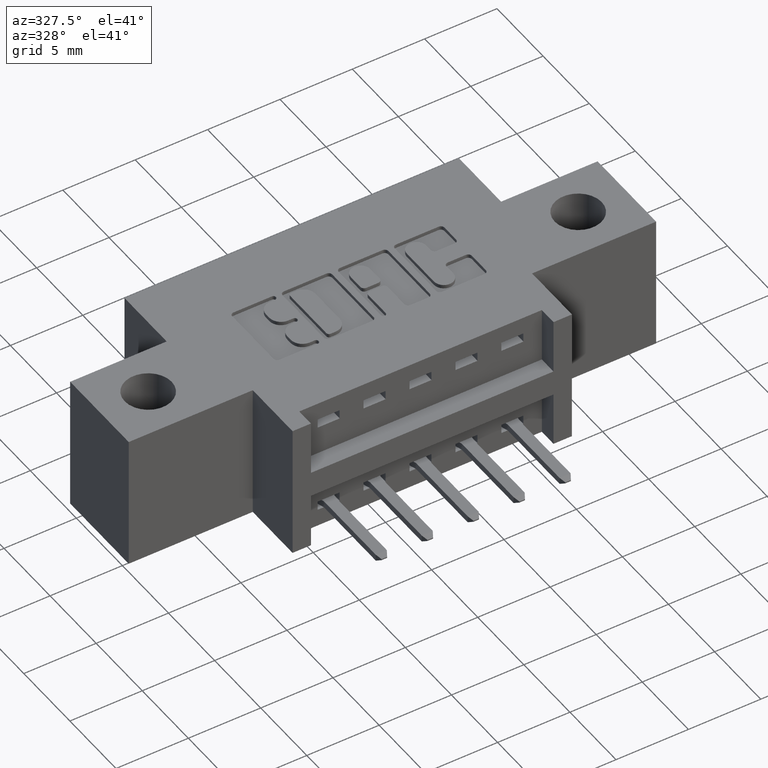
[diagram: clean part render]
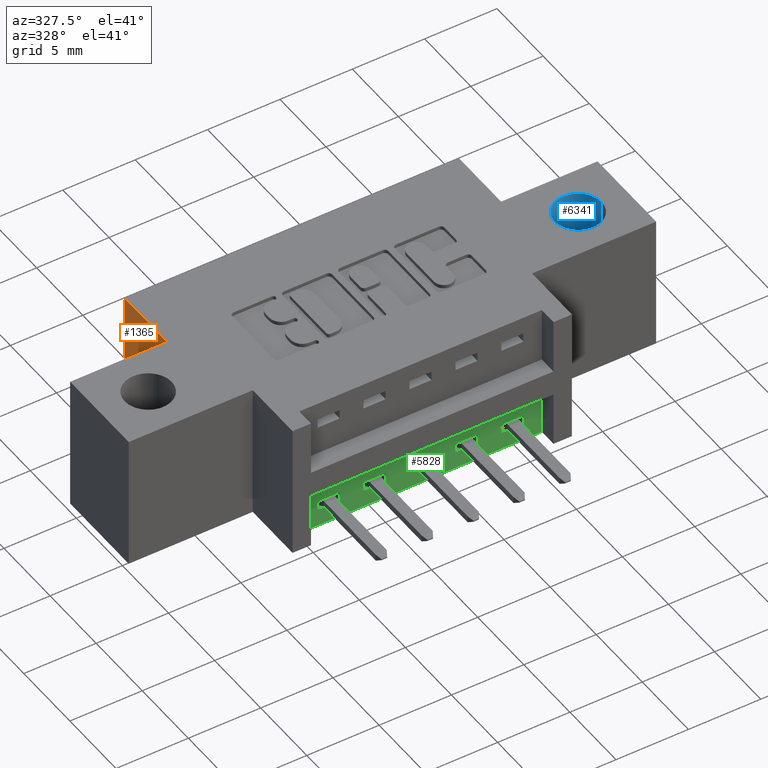
[diagram: same view with three faces highlighted in distinct colors, each labeled with its STEP entity id]
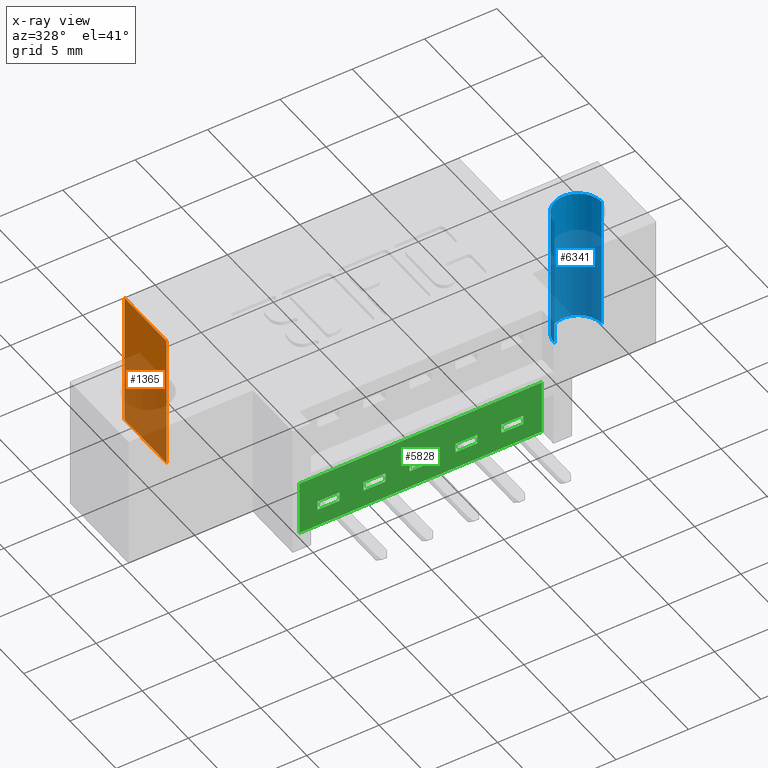
[diagram: x-ray of the same camera — body ghosted, the three highlighted faces saturated]
A machine part, auxiliary view with three faces highlighted in distinct colors.
The next image is the same camera in x-ray (body ghosted, the three faces saturated) — at least one of them is partly hidden behind the body in this view.
Their STEP definitions:

[orange] entity #1365 — the highlighted planar face has unit normal (1, 0, 0).
#114 = CARTESIAN_POINT ( 'NONE',  ( 0.2625000000000000111, 0.4199999999999999845, -0.3700000000000001621 ) ) ;
#914 = DIRECTION ( 'NONE',  ( 0.0000000000000000000, 0.0000000000000000000, -1.000000000000000000 ) ) ;
#1256 = EDGE_CURVE ( 'NONE', #5939, #2160, #5406, .T. ) ;
#1354 = LINE ( 'NONE', #114, #6264 ) ;
#1365 = ADVANCED_FACE ( 'NONE', ( #6417 ), #3744, .F. ) ;
#1375 = ORIENTED_EDGE ( 'NONE', *, *, #6856, .F. ) ;
#1568 = CARTESIAN_POINT ( 'NONE',  ( 0.2625000000000000111, 0.5999999999999999778, 0.0000000000000000000 ) ) ;
#1875 = CARTESIAN_POINT ( 'NONE',  ( 0.2625000000000000111, 0.4199999999999999845, 0.0000000000000000000 ) ) ;
#2008 = VERTEX_POINT ( 'NONE', #6945 ) ;
#2064 = VECTOR ( 'NONE', #4495, 39.37007874015748143 ) ;
#2147 = CARTESIAN_POINT ( 'NONE',  ( 0.2625000000000000111, 0.4199999999999999845, 0.0000000000000000000 ) ) ;
#2160 = VERTEX_POINT ( 'NONE', #8018 ) ;
#2694 = DIRECTION ( 'NONE',  ( 0.0000000000000000000, 0.0000000000000000000, -1.000000000000000000 ) ) ;
#3174 = LINE ( 'NONE', #2147, #2064 ) ;
#3744 = PLANE ( 'NONE',  #5890 ) ;
#3965 = CARTESIAN_POINT ( 'NONE',  ( 0.2625000000000000111, 0.4199999999999999845, 0.0000000000000000000 ) ) ;
#4134 = CARTESIAN_POINT ( 'NONE',  ( 0.2625000000000000111, 0.4199999999999999845, 0.0000000000000000000 ) ) ;
#4495 = DIRECTION ( 'NONE',  ( -0.0000000000000000000, 1.000000000000000000, -0.0000000000000000000 ) ) ;
#5406 = LINE ( 'NONE', #4134, #6982 ) ;
#5694 = VECTOR ( 'NONE', #914, 39.37007874015748143 ) ;
#5722 = ORIENTED_EDGE ( 'NONE', *, *, #8125, .T. ) ;
#5834 = EDGE_LOOP ( 'NONE', ( #5722, #1375, #6103, #7244 ) ) ;
#5890 = AXIS2_PLACEMENT_3D ( 'NONE', #1875, #7630, #6340 ) ;
#5939 = VERTEX_POINT ( 'NONE', #3965 ) ;
#6103 = ORIENTED_EDGE ( 'NONE', *, *, #1256, .F. ) ;
#6264 = VECTOR ( 'NONE', #7262, 39.37007874015748143 ) ;
#6313 = CARTESIAN_POINT ( 'NONE',  ( 0.2625000000000000111, 0.5999999999999999778, 0.0000000000000000000 ) ) ;
#6340 = DIRECTION ( 'NONE',  ( 0.0000000000000000000, 0.0000000000000000000, -1.000000000000000000 ) ) ;
#6417 = FACE_OUTER_BOUND ( 'NONE', #5834, .T. ) ;
#6431 = EDGE_CURVE ( 'NONE', #5939, #7626, #3174, .T. ) ;
#6746 = LINE ( 'NONE', #1568, #5694 ) ;
#6856 = EDGE_CURVE ( 'NONE', #2160, #2008, #1354, .T. ) ;
#6945 = CARTESIAN_POINT ( 'NONE',  ( 0.2625000000000000111, 0.5999999999999999778, -0.3700000000000001621 ) ) ;
#6982 = VECTOR ( 'NONE', #2694, 39.37007874015748143 ) ;
#7244 = ORIENTED_EDGE ( 'NONE', *, *, #6431, .T. ) ;
#7262 = DIRECTION ( 'NONE',  ( -0.0000000000000000000, 1.000000000000000000, -0.0000000000000000000 ) ) ;
#7626 = VERTEX_POINT ( 'NONE', #6313 ) ;
#7630 = DIRECTION ( 'NONE',  ( 1.000000000000000000, 0.0000000000000000000, 0.0000000000000000000 ) ) ;
#8018 = CARTESIAN_POINT ( 'NONE',  ( 0.2625000000000000111, 0.4199999999999999845, -0.3700000000000001621 ) ) ;
#8125 = EDGE_CURVE ( 'NONE', #7626, #2008, #6746, .T. ) ;

[blue] entity #6341 — the highlighted cylindrical surface (edge-blend (fillet) strip) has radius 1.6256 mm, axis along (0, 0, 1).
#640 = CARTESIAN_POINT ( 'NONE',  ( 1.302499999999999769, 0.2950000000000000955, -0.3700000000000001621 ) ) ;
#648 = VERTEX_POINT ( 'NONE', #4620 ) ;
#658 = CARTESIAN_POINT ( 'NONE',  ( 1.302499999999999769, 0.2950000000000000955, 0.0000000000000000000 ) ) ;
#1104 = CIRCLE ( 'NONE', #1675, 0.06400000000000045930 ) ;
#1265 = FACE_OUTER_BOUND ( 'NONE', #3704, .T. ) ;
#1314 = DIRECTION ( 'NONE',  ( 1.000000000000000000, 0.0000000000000000000, 0.0000000000000000000 ) ) ;
#1675 = AXIS2_PLACEMENT_3D ( 'NONE', #658, #4528, #7121 ) ;
#1710 = LINE ( 'NONE', #2249, #3003 ) ;
#1948 = DIRECTION ( 'NONE',  ( -1.000000000000000000, 0.0000000000000000000, 0.0000000000000000000 ) ) ;
#2249 = CARTESIAN_POINT ( 'NONE',  ( 1.238499999999999268, 0.2950000000000000955, -0.3700000000000001621 ) ) ;
#2350 = VECTOR ( 'NONE', #7273, 39.37007874015748143 ) ;
#2876 = ORIENTED_EDGE ( 'NONE', *, *, #7994, .F. ) ;
#3003 = VECTOR ( 'NONE', #7527, 39.37007874015748143 ) ;
#3704 = EDGE_LOOP ( 'NONE', ( #2876, #7881, #7176, #7292 ) ) ;
#3820 = CYLINDRICAL_SURFACE ( 'NONE', #6788, 0.06400000000000045930 ) ;
#4503 = DIRECTION ( 'NONE',  ( -0.0000000000000000000, -0.0000000000000000000, 1.000000000000000000 ) ) ;
#4507 = CARTESIAN_POINT ( 'NONE',  ( 1.238499999999999268, 0.2950000000000000955, 0.0000000000000000000 ) ) ;
#4528 = DIRECTION ( 'NONE',  ( 0.0000000000000000000, 0.0000000000000000000, 1.000000000000000000 ) ) ;
#4620 = CARTESIAN_POINT ( 'NONE',  ( 1.238499999999999268, 0.2950000000000000955, -0.3700000000000001621 ) ) ;
#5122 = DIRECTION ( 'NONE',  ( 0.0000000000000000000, 0.0000000000000000000, 1.000000000000000000 ) ) ;
#5922 = CARTESIAN_POINT ( 'NONE',  ( 1.366500000000000270, 0.2950000000000000955, -0.3700000000000001621 ) ) ;
#6107 = AXIS2_PLACEMENT_3D ( 'NONE', #6652, #5122, #1948 ) ;
#6132 = EDGE_CURVE ( 'NONE', #7066, #7188, #1104, .T. ) ;
#6341 = ADVANCED_FACE ( 'NONE', ( #1265 ), #3820, .F. ) ;
#6432 = CARTESIAN_POINT ( 'NONE',  ( 1.366500000000000270, 0.2950000000000000955, -0.3700000000000001621 ) ) ;
#6467 = EDGE_CURVE ( 'NONE', #6632, #648, #6645, .T. ) ;
#6632 = VERTEX_POINT ( 'NONE', #6432 ) ;
#6645 = CIRCLE ( 'NONE', #6107, 0.06400000000000045930 ) ;
#6652 = CARTESIAN_POINT ( 'NONE',  ( 1.302499999999999769, 0.2950000000000000955, -0.3700000000000001621 ) ) ;
#6788 = AXIS2_PLACEMENT_3D ( 'NONE', #640, #4503, #1314 ) ;
#7066 = VERTEX_POINT ( 'NONE', #7522 ) ;
#7121 = DIRECTION ( 'NONE',  ( -1.000000000000000000, 0.0000000000000000000, 0.0000000000000000000 ) ) ;
#7176 = ORIENTED_EDGE ( 'NONE', *, *, #7655, .T. ) ;
#7188 = VERTEX_POINT ( 'NONE', #4507 ) ;
#7273 = DIRECTION ( 'NONE',  ( -0.0000000000000000000, -0.0000000000000000000, 1.000000000000000000 ) ) ;
#7292 = ORIENTED_EDGE ( 'NONE', *, *, #6132, .T. ) ;
#7522 = CARTESIAN_POINT ( 'NONE',  ( 1.366500000000000270, 0.2950000000000000955, 0.0000000000000000000 ) ) ;
#7527 = DIRECTION ( 'NONE',  ( -0.0000000000000000000, -0.0000000000000000000, 1.000000000000000000 ) ) ;
#7655 = EDGE_CURVE ( 'NONE', #6632, #7066, #7874, .T. ) ;
#7874 = LINE ( 'NONE', #5922, #2350 ) ;
#7881 = ORIENTED_EDGE ( 'NONE', *, *, #6467, .F. ) ;
#7994 = EDGE_CURVE ( 'NONE', #648, #7188, #1710, .T. ) ;

[green] entity #5828 — the highlighted planar face has unit normal (0, -1, 0).
#127 = EDGE_CURVE ( 'NONE', #4017, #4509, #6909, .T. ) ;
#137 = CARTESIAN_POINT ( 'NONE',  ( 0.7474999999999998312, 0.05000000000000000971, -0.2975000000000001532 ) ) ;
#230 = EDGE_LOOP ( 'NONE', ( #3867, #3975, #2500, #6195 ) ) ;
#250 = CARTESIAN_POINT ( 'NONE',  ( 0.6224999999999999423, 0.05000000000000000971, -0.2975000000000001532 ) ) ;
#361 = LINE ( 'NONE', #2837, #7332 ) ;
#368 = VECTOR ( 'NONE', #489, 39.37007874015748143 ) ;
#390 = EDGE_CURVE ( 'NONE', #4957, #1799, #3539, .T. ) ;
#402 = CARTESIAN_POINT ( 'NONE',  ( 1.047500000000000098, 0.05000000000000000278, -0.3224999999999998423 ) ) ;
#451 = LINE ( 'NONE', #4282, #1890 ) ;
#466 = CARTESIAN_POINT ( 'NONE',  ( 0.6224999999999999423, 0.05000000000000000278, -0.3699999999999999956 ) ) ;
#468 = VERTEX_POINT ( 'NONE', #3468 ) ;
#489 = DIRECTION ( 'NONE',  ( 0.0000000000000000000, 0.0000000000000000000, 1.000000000000000000 ) ) ;
#624 = DIRECTION ( 'NONE',  ( 0.0000000000000000000, -0.0000000000000000000, -1.000000000000000000 ) ) ;
#691 = DIRECTION ( 'NONE',  ( -1.000000000000000000, -0.0000000000000000000, -1.034790906691008235E-16 ) ) ;
#725 = CARTESIAN_POINT ( 'NONE',  ( 1.047500000000000098, 0.05000000000000000278, -0.3224999999999998979 ) ) ;
#748 = DIRECTION ( 'NONE',  ( 0.0000000000000000000, 0.0000000000000000000, 1.000000000000000000 ) ) ;
#797 = LINE ( 'NONE', #2803, #2020 ) ;
#838 = VECTOR ( 'NONE', #3799, 39.37007874015748143 ) ;
#846 = ORIENTED_EDGE ( 'NONE', *, *, #2543, .T. ) ;
#865 = CARTESIAN_POINT ( 'NONE',  ( 0.4974999999999999978, 0.05000000000000000278, -0.3224999999999998979 ) ) ;
#873 = CARTESIAN_POINT ( 'NONE',  ( 1.047500000000000098, 0.05000000000000000278, -0.2975000000000001532 ) ) ;
#1007 = ORIENTED_EDGE ( 'NONE', *, *, #2792, .F. ) ;
#1008 = VECTOR ( 'NONE', #6589, 39.37007874015748143 ) ;
#1025 = EDGE_LOOP ( 'NONE', ( #7901, #2710, #7331, #1740 ) ) ;
#1075 = VECTOR ( 'NONE', #1813, 39.37007874015748143 ) ;
#1103 = CARTESIAN_POINT ( 'NONE',  ( 0.6224999999999999423, 0.05000000000000000278, -0.3224999999999998979 ) ) ;
#1151 = CARTESIAN_POINT ( 'NONE',  ( 0.8724999999999999423, 0.05000000000000000971, -0.2975000000000001532 ) ) ;
#1161 = LINE ( 'NONE', #2364, #2545 ) ;
#1184 = VERTEX_POINT ( 'NONE', #2043 ) ;
#1253 = VECTOR ( 'NONE', #5815, 39.37007874015748143 ) ;
#1298 = DIRECTION ( 'NONE',  ( 0.0000000000000000000, -1.000000000000000000, 0.0000000000000000000 ) ) ;
#1373 = LINE ( 'NONE', #6527, #7075 ) ;
#1516 = AXIS2_PLACEMENT_3D ( 'NONE', #7661, #1298, #624 ) ;
#1522 = ORIENTED_EDGE ( 'NONE', *, *, #6970, .F. ) ;
#1572 = CARTESIAN_POINT ( 'NONE',  ( 0.4974999999999999978, 0.05000000000000000971, -0.2975000000000001532 ) ) ;
#1579 = FACE_BOUND ( 'NONE', #230, .T. ) ;
#1645 = LINE ( 'NONE', #6061, #4690 ) ;
#1713 = FACE_OUTER_BOUND ( 'NONE', #5613, .T. ) ;
#1736 = CARTESIAN_POINT ( 'NONE',  ( 0.8724999999999999423, 0.05000000000000000278, -0.3699999999999999956 ) ) ;
#1740 = ORIENTED_EDGE ( 'NONE', *, *, #127, .F. ) ;
#1778 = LINE ( 'NONE', #7597, #1075 ) ;
#1799 = VERTEX_POINT ( 'NONE', #1151 ) ;
#1811 = EDGE_CURVE ( 'NONE', #2668, #4957, #3188, .T. ) ;
#1812 = VECTOR ( 'NONE', #7512, 39.37007874015748143 ) ;
#1813 = DIRECTION ( 'NONE',  ( 1.000000000000000000, 0.0000000000000000000, 2.069581813382016716E-16 ) ) ;
#1838 = CARTESIAN_POINT ( 'NONE',  ( 1.047500000000000098, 0.05000000000000000278, -0.3699999999999999956 ) ) ;
#1849 = EDGE_CURVE ( 'NONE', #3419, #1184, #4588, .T. ) ;
#1877 = VECTOR ( 'NONE', #3899, 39.37007874015748143 ) ;
#1890 = VECTOR ( 'NONE', #4952, 39.37007874015748143 ) ;
#1986 = ORIENTED_EDGE ( 'NONE', *, *, #3374, .T. ) ;
#2002 = LINE ( 'NONE', #3989, #3379 ) ;
#2020 = VECTOR ( 'NONE', #4783, 39.37007874015748143 ) ;
#2043 = CARTESIAN_POINT ( 'NONE',  ( 0.3874999999999997335, 0.05000000000000000278, -0.2200000000000000844 ) ) ;
#2097 = DIRECTION ( 'NONE',  ( 0.0000000000000000000, 0.0000000000000000000, 1.000000000000000000 ) ) ;
#2276 = ORIENTED_EDGE ( 'NONE', *, *, #8252, .T. ) ;
#2364 = CARTESIAN_POINT ( 'NONE',  ( 0.3874999999999999001, 0.05000000000000000278, -0.3700000000000001621 ) ) ;
#2421 = CARTESIAN_POINT ( 'NONE',  ( 1.047500000000000098, 0.05000000000000000278, -0.2975000000000001532 ) ) ;
#2450 = CARTESIAN_POINT ( 'NONE',  ( 0.4375000000000000555, 0.05000000000000000971, -0.2975000000000001532 ) ) ;
#2498 = DIRECTION ( 'NONE',  ( -1.000000000000000000, 0.0000000000000000000, 0.0000000000000000000 ) ) ;
#2500 = ORIENTED_EDGE ( 'NONE', *, *, #7791, .F. ) ;
#2543 = EDGE_CURVE ( 'NONE', #6335, #3362, #2688, .T. ) ;
#2545 = VECTOR ( 'NONE', #5528, 39.37007874015748143 ) ;
#2566 = DIRECTION ( 'NONE',  ( 0.0000000000000000000, 0.0000000000000000000, 1.000000000000000000 ) ) ;
#2568 = CARTESIAN_POINT ( 'NONE',  ( 1.047500000000000098, 0.05000000000000000278, -0.2975000000000001532 ) ) ;
#2626 = LINE ( 'NONE', #5191, #838 ) ;
#2668 = VERTEX_POINT ( 'NONE', #6290 ) ;
#2688 = LINE ( 'NONE', #3182, #1877 ) ;
#2710 = ORIENTED_EDGE ( 'NONE', *, *, #3550, .T. ) ;
#2792 = EDGE_CURVE ( 'NONE', #4002, #6077, #797, .T. ) ;
#2803 = CARTESIAN_POINT ( 'NONE',  ( 1.047500000000000098, 0.05000000000000000278, -0.3224999999999998979 ) ) ;
#2822 = VERTEX_POINT ( 'NONE', #4826 ) ;
#2837 = CARTESIAN_POINT ( 'NONE',  ( 1.047500000000000098, 0.05000000000000000278, -0.3224999999999998979 ) ) ;
#2873 = EDGE_CURVE ( 'NONE', #1184, #8255, #1161, .T. ) ;
#2901 = LINE ( 'NONE', #873, #5163 ) ;
#2903 = ORIENTED_EDGE ( 'NONE', *, *, #2873, .T. ) ;
#2920 = CARTESIAN_POINT ( 'NONE',  ( 0.9374999999999998890, 0.05000000000000014849, -0.3224999999999998423 ) ) ;
#2948 = FACE_BOUND ( 'NONE', #1025, .T. ) ;
#2962 = ORIENTED_EDGE ( 'NONE', *, *, #3531, .T. ) ;
#2991 = VECTOR ( 'NONE', #7684, 39.37007874015748143 ) ;
#3115 = LINE ( 'NONE', #8293, #2991 ) ;
#3118 = EDGE_CURVE ( 'NONE', #2668, #7511, #5809, .T. ) ;
#3182 = CARTESIAN_POINT ( 'NONE',  ( 0.5625000000000000000, 0.05000000000000000278, -0.3699999999999999956 ) ) ;
#3186 = ORIENTED_EDGE ( 'NONE', *, *, #4496, .F. ) ;
#3188 = LINE ( 'NONE', #3226, #5079 ) ;
#3226 = CARTESIAN_POINT ( 'NONE',  ( 1.047500000000000098, 0.05000000000000000278, -0.3224999999999998423 ) ) ;
#3266 = EDGE_CURVE ( 'NONE', #4509, #7815, #451, .T. ) ;
#3312 = CARTESIAN_POINT ( 'NONE',  ( 0.3874999999999997335, 0.05000000000000000278, -0.2200000000000000844 ) ) ;
#3323 = CARTESIAN_POINT ( 'NONE',  ( 0.5625000000000000000, 0.05000000000000000971, -0.2975000000000001532 ) ) ;
#3362 = VERTEX_POINT ( 'NONE', #3323 ) ;
#3374 = EDGE_CURVE ( 'NONE', #4002, #468, #1645, .T. ) ;
#3379 = VECTOR ( 'NONE', #7948, 39.37007874015748143 ) ;
#3419 = VERTEX_POINT ( 'NONE', #7378 ) ;
#3452 = VECTOR ( 'NONE', #2566, 39.37007874015748143 ) ;
#3468 = CARTESIAN_POINT ( 'NONE',  ( 0.6874999999999998890, 0.05000000000000000971, -0.2975000000000001532 ) ) ;
#3476 = LINE ( 'NONE', #2421, #8127 ) ;
#3531 = EDGE_CURVE ( 'NONE', #8255, #4225, #1778, .T. ) ;
#3539 = LINE ( 'NONE', #1736, #368 ) ;
#3550 = EDGE_CURVE ( 'NONE', #6604, #7815, #3709, .T. ) ;
#3657 = VECTOR ( 'NONE', #5511, 39.37007874015748143 ) ;
#3673 = CARTESIAN_POINT ( 'NONE',  ( 0.4375000000000000555, 0.05000000000000014849, -0.3224999999999998979 ) ) ;
#3709 = LINE ( 'NONE', #6316, #6204 ) ;
#3759 = VERTEX_POINT ( 'NONE', #250 ) ;
#3799 = DIRECTION ( 'NONE',  ( 0.0000000000000000000, 0.0000000000000000000, 1.000000000000000000 ) ) ;
#3855 = CARTESIAN_POINT ( 'NONE',  ( 0.8124999999999998890, 0.05000000000000000278, -0.3699999999999999956 ) ) ;
#3867 = ORIENTED_EDGE ( 'NONE', *, *, #1811, .F. ) ;
#3887 = ORIENTED_EDGE ( 'NONE', *, *, #7088, .T. ) ;
#3899 = DIRECTION ( 'NONE',  ( 0.0000000000000000000, 0.0000000000000000000, 1.000000000000000000 ) ) ;
#3975 = ORIENTED_EDGE ( 'NONE', *, *, #3118, .T. ) ;
#3989 = CARTESIAN_POINT ( 'NONE',  ( 1.047500000000000098, 0.05000000000000000278, -0.2975000000000001532 ) ) ;
#3993 = DIRECTION ( 'NONE',  ( 1.000000000000000000, 0.0000000000000000000, 0.0000000000000000000 ) ) ;
#4002 = VERTEX_POINT ( 'NONE', #4775 ) ;
#4017 = VERTEX_POINT ( 'NONE', #865 ) ;
#4026 = CARTESIAN_POINT ( 'NONE',  ( 0.8724999999999999423, 0.05000000000000000278, -0.3224999999999998423 ) ) ;
#4059 = DIRECTION ( 'NONE',  ( 1.000000000000000000, 0.0000000000000000000, 0.0000000000000000000 ) ) ;
#4225 = VERTEX_POINT ( 'NONE', #1838 ) ;
#4228 = VERTEX_POINT ( 'NONE', #1103 ) ;
#4231 = LINE ( 'NONE', #402, #1812 ) ;
#4282 = CARTESIAN_POINT ( 'NONE',  ( 1.047500000000000098, 0.05000000000000000278, -0.2975000000000001532 ) ) ;
#4359 = EDGE_LOOP ( 'NONE', ( #5943, #846, #3186, #7908 ) ) ;
#4372 = EDGE_CURVE ( 'NONE', #4228, #3759, #4920, .T. ) ;
#4443 = VERTEX_POINT ( 'NONE', #7708 ) ;
#4496 = EDGE_CURVE ( 'NONE', #3759, #3362, #8351, .T. ) ;
#4509 = VERTEX_POINT ( 'NONE', #1572 ) ;
#4588 = LINE ( 'NONE', #3312, #8332 ) ;
#4604 = CARTESIAN_POINT ( 'NONE',  ( 0.7474999999999998312, 0.05000000000000000278, -0.3224999999999998979 ) ) ;
#4612 = EDGE_LOOP ( 'NONE', ( #1007, #1986, #1522, #5407 ) ) ;
#4690 = VECTOR ( 'NONE', #2097, 39.37007874015748143 ) ;
#4720 = VERTEX_POINT ( 'NONE', #2920 ) ;
#4775 = CARTESIAN_POINT ( 'NONE',  ( 0.6874999999999998890, 0.05000000000000014849, -0.3224999999999998979 ) ) ;
#4783 = DIRECTION ( 'NONE',  ( 1.000000000000000000, 0.0000000000000000000, 0.0000000000000000000 ) ) ;
#4813 = CARTESIAN_POINT ( 'NONE',  ( 1.047500000000000098, 0.05000000000000000278, -0.3699999999999999956 ) ) ;
#4826 = CARTESIAN_POINT ( 'NONE',  ( 0.9374999999999998890, 0.05000000000000000971, -0.2975000000000001532 ) ) ;
#4853 = LINE ( 'NONE', #4813, #3657 ) ;
#4920 = LINE ( 'NONE', #466, #7877 ) ;
#4952 = DIRECTION ( 'NONE',  ( -1.000000000000000000, 0.0000000000000000000, 0.0000000000000000000 ) ) ;
#4957 = VERTEX_POINT ( 'NONE', #4026 ) ;
#4977 = EDGE_CURVE ( 'NONE', #6077, #7504, #2626, .T. ) ;
#5032 = DIRECTION ( 'NONE',  ( 0.0000000000000000000, 0.0000000000000000000, 1.000000000000000000 ) ) ;
#5079 = VECTOR ( 'NONE', #3993, 39.37007874015748143 ) ;
#5163 = VECTOR ( 'NONE', #7434, 39.37007874015748143 ) ;
#5190 = EDGE_CURVE ( 'NONE', #4443, #2822, #2002, .T. ) ;
#5191 = CARTESIAN_POINT ( 'NONE',  ( 0.7474999999999998312, 0.05000000000000000278, -0.3699999999999999956 ) ) ;
#5286 = CARTESIAN_POINT ( 'NONE',  ( 0.8124999999999998890, 0.05000000000000000971, -0.2975000000000001532 ) ) ;
#5314 = LINE ( 'NONE', #725, #1008 ) ;
#5407 = ORIENTED_EDGE ( 'NONE', *, *, #4977, .F. ) ;
#5443 = FACE_BOUND ( 'NONE', #4359, .T. ) ;
#5487 = ORIENTED_EDGE ( 'NONE', *, *, #6599, .F. ) ;
#5511 = DIRECTION ( 'NONE',  ( 0.0000000000000000000, 0.0000000000000000000, 1.000000000000000000 ) ) ;
#5528 = DIRECTION ( 'NONE',  ( 9.106159978880873451E-16, -0.0000000000000000000, -1.000000000000000000 ) ) ;
#5538 = FACE_BOUND ( 'NONE', #4612, .T. ) ;
#5613 = EDGE_LOOP ( 'NONE', ( #2962, #2276, #6634, #2903 ) ) ;
#5632 = CARTESIAN_POINT ( 'NONE',  ( 0.9974999999999999423, 0.05000000000000000278, -0.3224999999999998423 ) ) ;
#5809 = LINE ( 'NONE', #3855, #3452 ) ;
#5815 = DIRECTION ( 'NONE',  ( -1.000000000000000000, 0.0000000000000000000, 0.0000000000000000000 ) ) ;
#5828 = ADVANCED_FACE ( 'NONE', ( #1713, #2948, #5443, #5538, #1579, #7443 ), #8020, .T. ) ;
#5943 = ORIENTED_EDGE ( 'NONE', *, *, #8251, .F. ) ;
#6005 = ORIENTED_EDGE ( 'NONE', *, *, #6546, .F. ) ;
#6061 = CARTESIAN_POINT ( 'NONE',  ( 0.6874999999999998890, 0.05000000000000000278, -0.3699999999999999956 ) ) ;
#6077 = VERTEX_POINT ( 'NONE', #4604 ) ;
#6195 = ORIENTED_EDGE ( 'NONE', *, *, #390, .F. ) ;
#6204 = VECTOR ( 'NONE', #5032, 39.37007874015748143 ) ;
#6271 = DIRECTION ( 'NONE',  ( 0.0000000000000000000, 0.0000000000000000000, 1.000000000000000000 ) ) ;
#6290 = CARTESIAN_POINT ( 'NONE',  ( 0.8124999999999998890, 0.05000000000000014849, -0.3224999999999998423 ) ) ;
#6316 = CARTESIAN_POINT ( 'NONE',  ( 0.4375000000000000555, 0.05000000000000000278, -0.3699999999999999956 ) ) ;
#6335 = VERTEX_POINT ( 'NONE', #7059 ) ;
#6527 = CARTESIAN_POINT ( 'NONE',  ( 0.9374999999999998890, 0.05000000000000000278, -0.3699999999999999956 ) ) ;
#6546 = EDGE_CURVE ( 'NONE', #4720, #7574, #4231, .T. ) ;
#6589 = DIRECTION ( 'NONE',  ( 1.000000000000000000, 0.0000000000000000000, 0.0000000000000000000 ) ) ;
#6599 = EDGE_CURVE ( 'NONE', #7574, #4443, #3115, .T. ) ;
#6604 = VERTEX_POINT ( 'NONE', #3673 ) ;
#6634 = ORIENTED_EDGE ( 'NONE', *, *, #1849, .T. ) ;
#6779 = CARTESIAN_POINT ( 'NONE',  ( 0.4974999999999999978, 0.05000000000000000278, -0.3699999999999999956 ) ) ;
#6909 = LINE ( 'NONE', #6779, #8190 ) ;
#6970 = EDGE_CURVE ( 'NONE', #7504, #468, #2901, .T. ) ;
#7059 = CARTESIAN_POINT ( 'NONE',  ( 0.5625000000000000000, 0.05000000000000014849, -0.3224999999999998979 ) ) ;
#7075 = VECTOR ( 'NONE', #748, 39.37007874015748143 ) ;
#7088 = EDGE_CURVE ( 'NONE', #4720, #2822, #1373, .T. ) ;
#7146 = ORIENTED_EDGE ( 'NONE', *, *, #5190, .F. ) ;
#7249 = EDGE_CURVE ( 'NONE', #6604, #4017, #5314, .T. ) ;
#7331 = ORIENTED_EDGE ( 'NONE', *, *, #3266, .F. ) ;
#7332 = VECTOR ( 'NONE', #4059, 39.37007874015748143 ) ;
#7378 = CARTESIAN_POINT ( 'NONE',  ( 1.047500000000000098, 0.05000000000000000278, -0.2200000000000000011 ) ) ;
#7434 = DIRECTION ( 'NONE',  ( -1.000000000000000000, 0.0000000000000000000, 0.0000000000000000000 ) ) ;
#7443 = FACE_BOUND ( 'NONE', #7763, .T. ) ;
#7504 = VERTEX_POINT ( 'NONE', #137 ) ;
#7511 = VERTEX_POINT ( 'NONE', #5286 ) ;
#7512 = DIRECTION ( 'NONE',  ( 1.000000000000000000, 0.0000000000000000000, 0.0000000000000000000 ) ) ;
#7534 = DIRECTION ( 'NONE',  ( 0.0000000000000000000, 0.0000000000000000000, 1.000000000000000000 ) ) ;
#7574 = VERTEX_POINT ( 'NONE', #5632 ) ;
#7597 = CARTESIAN_POINT ( 'NONE',  ( 0.3874999999999999001, 0.05000000000000000278, -0.3700000000000001621 ) ) ;
#7661 = CARTESIAN_POINT ( 'NONE',  ( 1.047500000000000098, 0.05000000000000000278, -0.3699999999999999956 ) ) ;
#7684 = DIRECTION ( 'NONE',  ( 0.0000000000000000000, 0.0000000000000000000, 1.000000000000000000 ) ) ;
#7708 = CARTESIAN_POINT ( 'NONE',  ( 0.9974999999999999423, 0.05000000000000000971, -0.2975000000000001532 ) ) ;
#7763 = EDGE_LOOP ( 'NONE', ( #6005, #3887, #7146, #5487 ) ) ;
#7791 = EDGE_CURVE ( 'NONE', #1799, #7511, #3476, .T. ) ;
#7815 = VERTEX_POINT ( 'NONE', #2450 ) ;
#7877 = VECTOR ( 'NONE', #7534, 39.37007874015748143 ) ;
#7901 = ORIENTED_EDGE ( 'NONE', *, *, #7249, .F. ) ;
#7908 = ORIENTED_EDGE ( 'NONE', *, *, #4372, .F. ) ;
#7948 = DIRECTION ( 'NONE',  ( -1.000000000000000000, 0.0000000000000000000, 0.0000000000000000000 ) ) ;
#8020 = PLANE ( 'NONE',  #1516 ) ;
#8037 = CARTESIAN_POINT ( 'NONE',  ( 0.3874999999999999001, 0.05000000000000000278, -0.3700000000000001621 ) ) ;
#8127 = VECTOR ( 'NONE', #2498, 39.37007874015748143 ) ;
#8190 = VECTOR ( 'NONE', #6271, 39.37007874015748143 ) ;
#8251 = EDGE_CURVE ( 'NONE', #6335, #4228, #361, .T. ) ;
#8252 = EDGE_CURVE ( 'NONE', #4225, #3419, #4853, .T. ) ;
#8255 = VERTEX_POINT ( 'NONE', #8037 ) ;
#8293 = CARTESIAN_POINT ( 'NONE',  ( 0.9974999999999999423, 0.05000000000000000278, -0.3699999999999999956 ) ) ;
#8332 = VECTOR ( 'NONE', #691, 39.37007874015748143 ) ;
#8351 = LINE ( 'NONE', #2568, #1253 ) ;